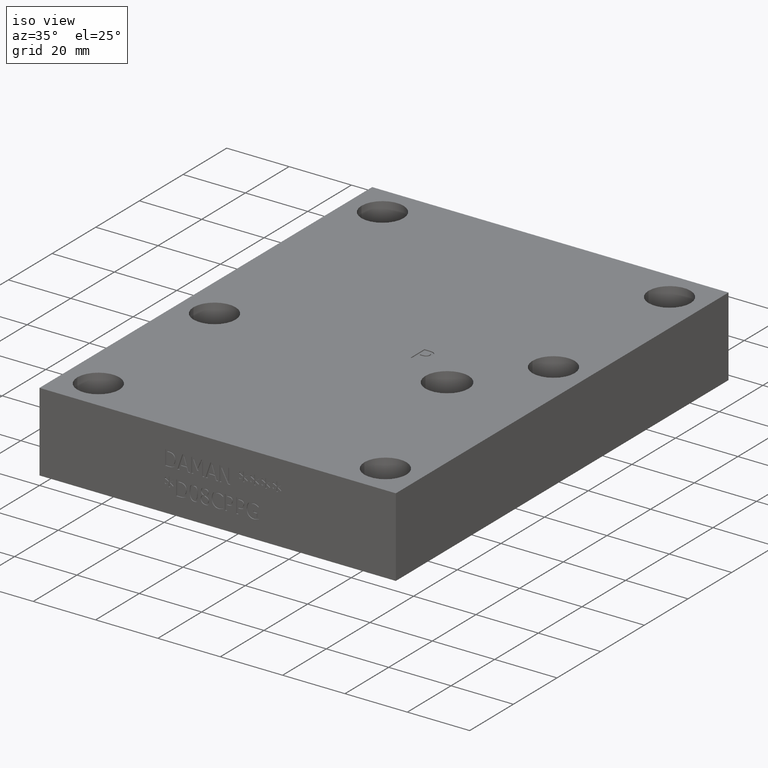
[diagram: clean part render]
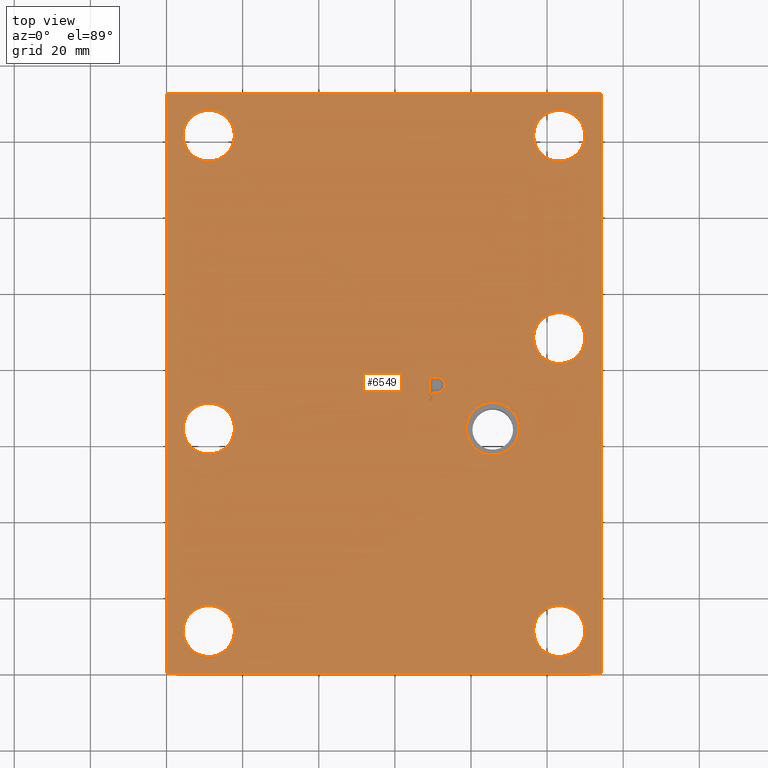
[diagram: tour spotlight — one face highlighted and labeled with its STEP entity id]
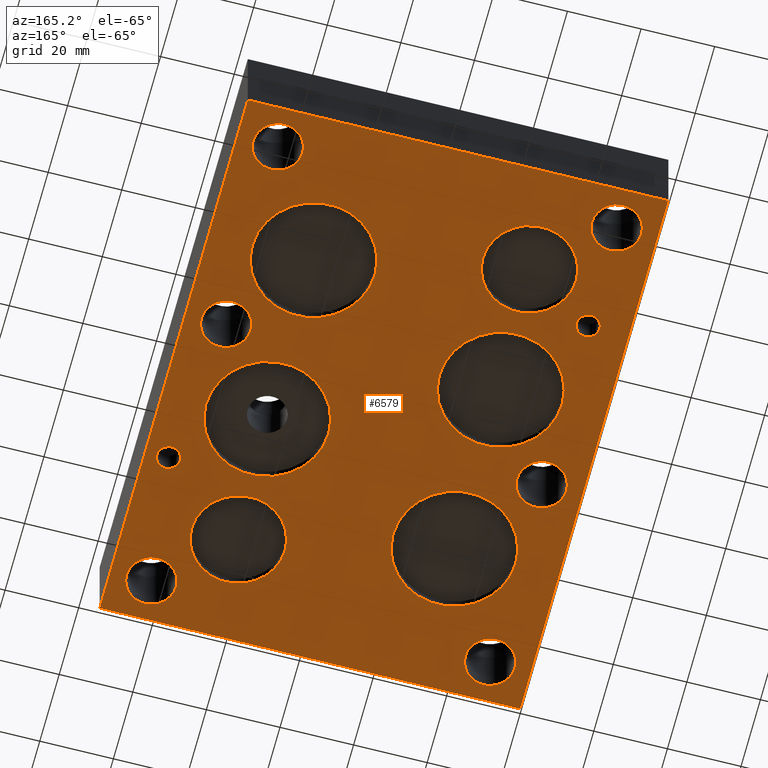
[diagram: tour spotlight — one face highlighted and labeled with its STEP entity id]
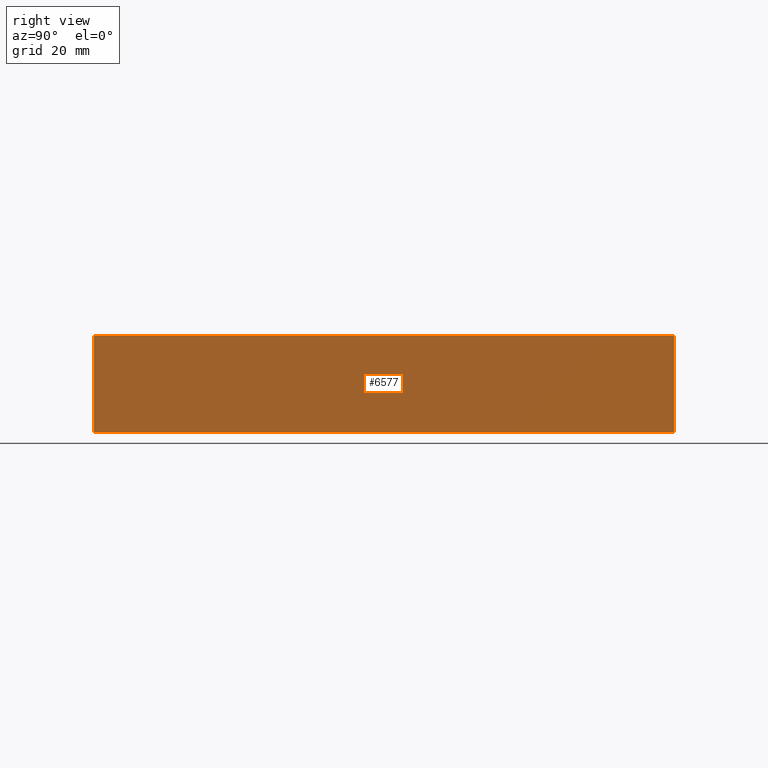
[diagram: tour spotlight — one face highlighted and labeled with its STEP entity id]
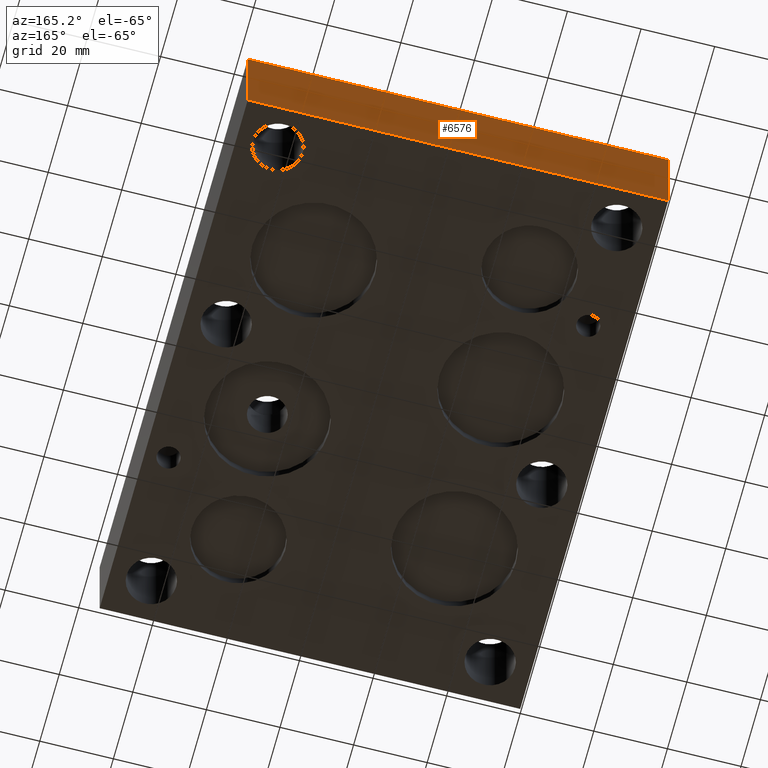
[diagram: tour spotlight — one face highlighted and labeled with its STEP entity id]
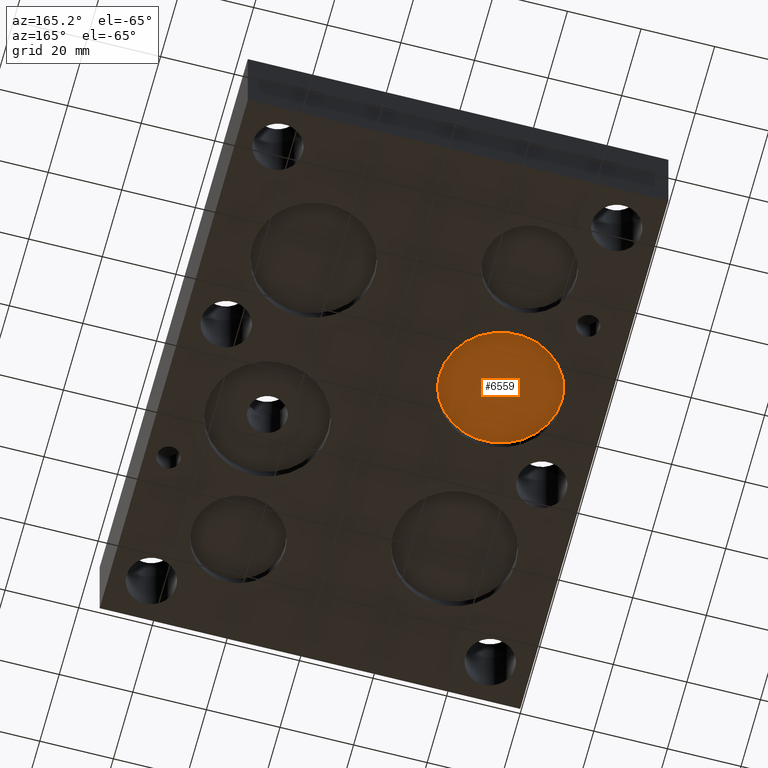
[diagram: tour spotlight — one face highlighted and labeled with its STEP entity id]
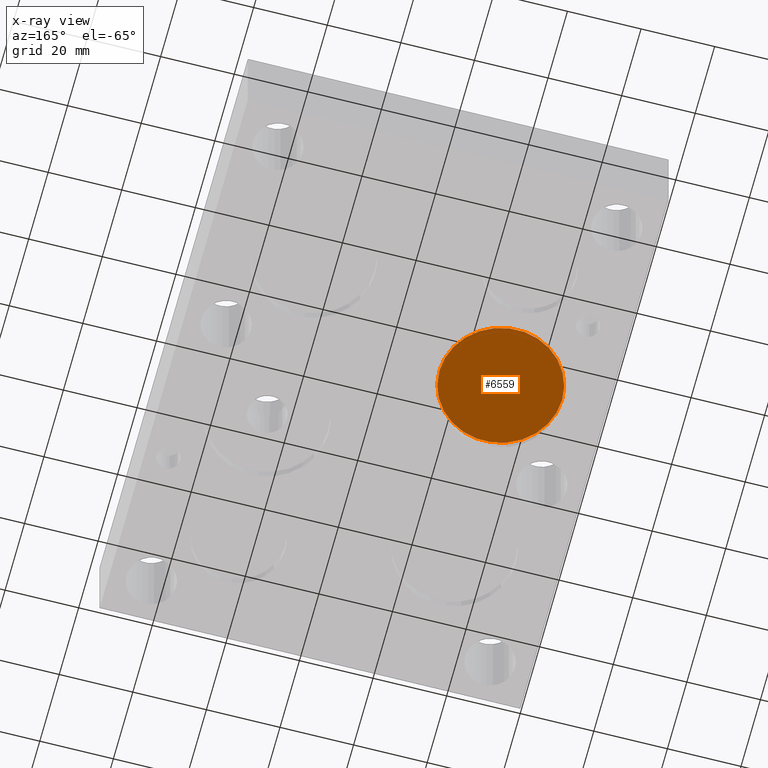
[diagram: x-ray of the same camera — body ghosted, this tour face saturated]
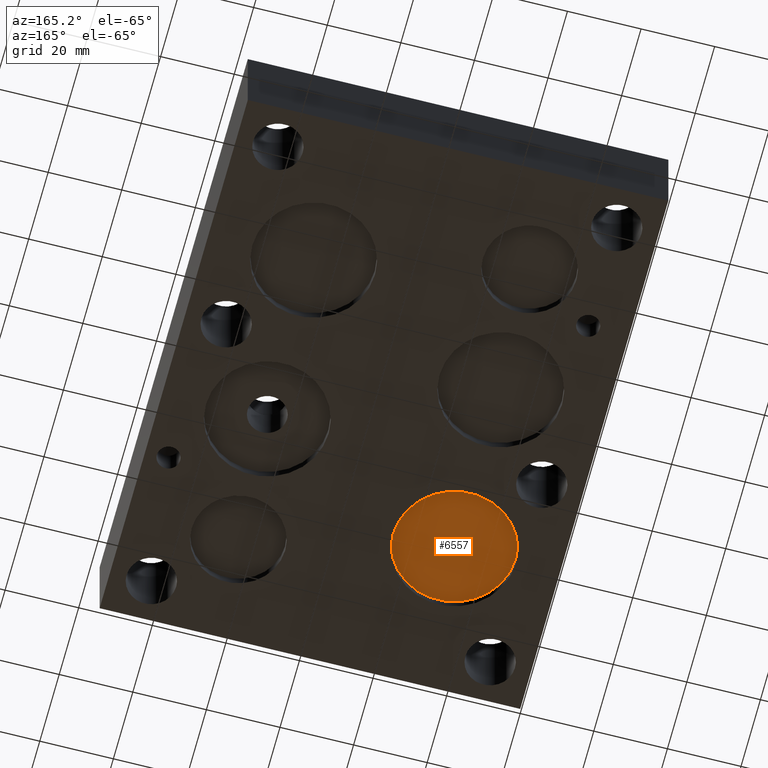
[diagram: tour spotlight — one face highlighted and labeled with its STEP entity id]
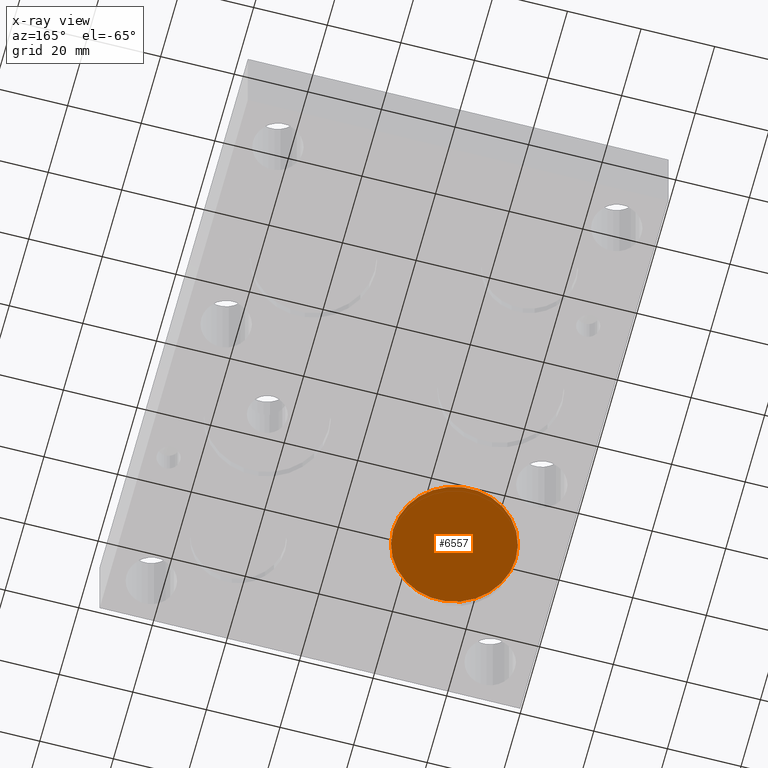
[diagram: x-ray of the same camera — body ghosted, this tour face saturated]
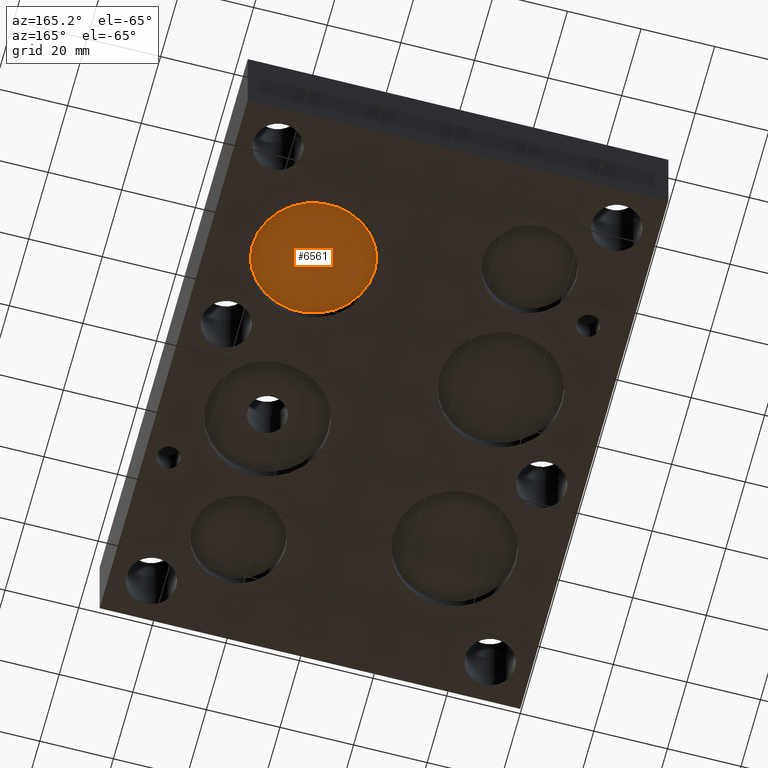
[diagram: tour spotlight — one face highlighted and labeled with its STEP entity id]
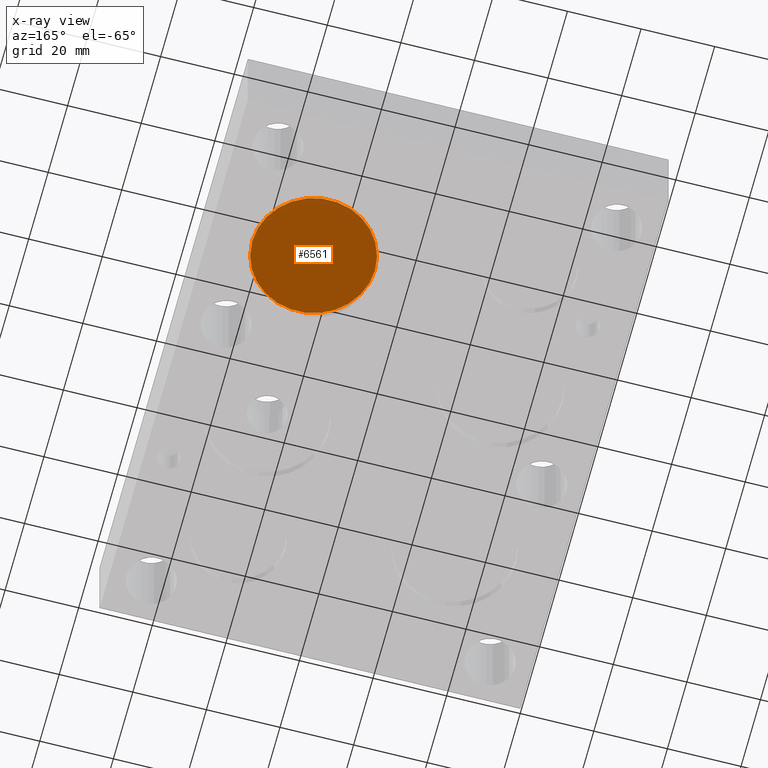
[diagram: x-ray of the same camera — body ghosted, this tour face saturated]
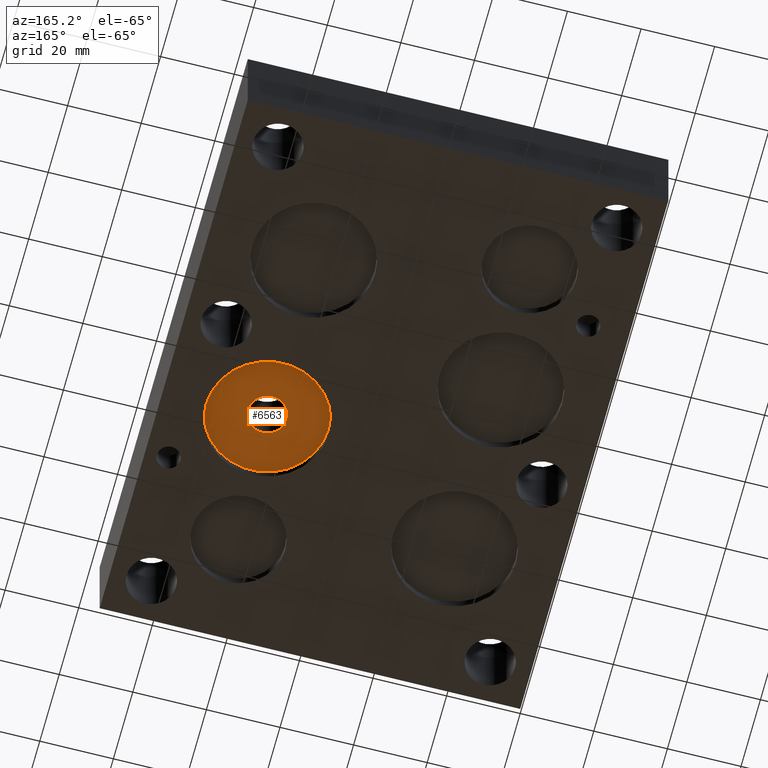
[diagram: tour spotlight — one face highlighted and labeled with its STEP entity id]
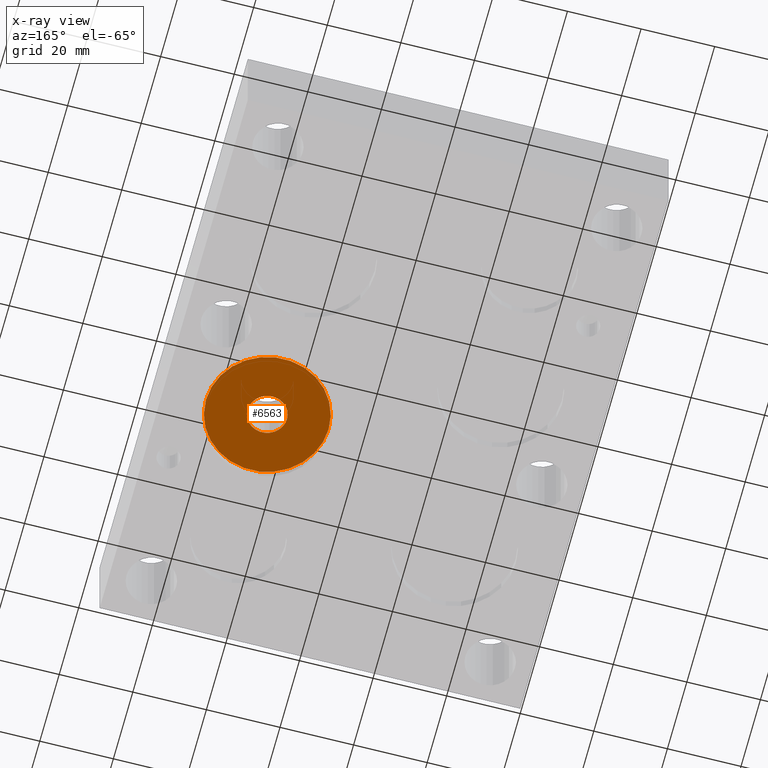
[diagram: x-ray of the same camera — body ghosted, this tour face saturated]
A machine part: a face-by-face anatomy tour. The part has 344 B-rep faces; the first image is the clean iso view, then the 8 largest visible faces are spotlighted one at a time (largest first), each with its STEP entity span.

Face 1 — top view, entity #6549. In plain terms, the highlighted planar face has unit normal (0, 0, 1).
Definition (entity closure, byte-faithful):
#33=CIRCLE('',#6813,0.2655);
#34=CIRCLE('',#6814,0.2655);
#35=CIRCLE('',#6815,0.2655);
#36=CIRCLE('',#6816,0.2655);
#37=CIRCLE('',#6817,0.2655);
#38=CIRCLE('',#6818,0.2655);
#39=CIRCLE('',#6819,0.273);
#40=CIRCLE('',#6820,0.273);
#117=FACE_BOUND('',#926,.T.);
#118=FACE_BOUND('',#927,.T.);
#119=FACE_BOUND('',#928,.T.);
#120=FACE_BOUND('',#929,.T.);
#121=FACE_BOUND('',#930,.T.);
#122=FACE_BOUND('',#931,.T.);
#123=FACE_BOUND('',#932,.T.);
#124=FACE_BOUND('',#933,.T.);
#554=FACE_OUTER_BOUND('',#925,.T.);
#925=EDGE_LOOP('',(#5819,#5820,#5821,#5822));
#926=EDGE_LOOP('',(#5823));
#927=EDGE_LOOP('',(#5824));
#928=EDGE_LOOP('',(#5825));
#929=EDGE_LOOP('',(#5826));
#930=EDGE_LOOP('',(#5827));
#931=EDGE_LOOP('',(#5828));
#932=EDGE_LOOP('',(#5829,#5830));
#933=EDGE_LOOP('',(#5831,#5832,#5833,#5834,#5835,#5836,#5837,#5838,#5839));
#1602=LINE('',#11308,#2285);
#1619=LINE('',#11465,#2302);
#1622=LINE('',#11470,#2305);
#1624=LINE('',#11474,#2307);
#1633=LINE('',#11516,#2316);
#1635=LINE('',#11520,#2318);
#1638=LINE('',#11550,#2321);
#1639=LINE('',#11552,#2322);
#1640=LINE('',#11553,#2323);
#2285=VECTOR('',#7912,4.5);
#2302=VECTOR('',#7949,0.393700787401575);
#2305=VECTOR('',#7954,0.393700787401575);
#2307=VECTOR('',#7958,0.393700787401575);
#2316=VECTOR('',#7975,0.393700787401575);
#2318=VECTOR('',#7979,0.393700787401575);
#2321=VECTOR('',#7984,6.);
#2322=VECTOR('',#7985,6.);
#2323=VECTOR('',#7986,4.5);
#2545=B_SPLINE_CURVE_WITH_KNOTS('',2,(#11485,#11486,#11487,#11488),
 .UNSPECIFIED.,.F.,.F.,(3,1,3),(0.,1.,2.),.UNSPECIFIED.);
#2546=B_SPLINE_CURVE_WITH_KNOTS('',2,(#11499,#11500,#11501,#11502),
 .UNSPECIFIED.,.F.,.F.,(3,1,3),(0.,1.,2.),.UNSPECIFIED.);
#2547=B_SPLINE_CURVE_WITH_KNOTS('',2,(#11531,#11532,#11533,#11534),
 .UNSPECIFIED.,.F.,.F.,(3,1,3),(0.,1.,2.),.UNSPECIFIED.);
#2548=B_SPLINE_CURVE_WITH_KNOTS('',2,(#11544,#11545,#11546,#11547),
 .UNSPECIFIED.,.F.,.F.,(3,1,3),(0.,1.,2.),.UNSPECIFIED.);
#3087=VERTEX_POINT('',#11306);
#3088=VERTEX_POINT('',#11307);
#3112=VERTEX_POINT('',#11463);
#3113=VERTEX_POINT('',#11464);
#3114=VERTEX_POINT('',#11469);
#3115=VERTEX_POINT('',#11473);
#3116=VERTEX_POINT('',#11484);
#3117=VERTEX_POINT('',#11498);
#3120=VERTEX_POINT('',#11515);
#3121=VERTEX_POINT('',#11519);
#3122=VERTEX_POINT('',#11530);
#3123=VERTEX_POINT('',#11549);
#3124=VERTEX_POINT('',#11551);
#3125=VERTEX_POINT('',#11554);
#3126=VERTEX_POINT('',#11556);
#3127=VERTEX_POINT('',#11558);
#3128=VERTEX_POINT('',#11560);
#3129=VERTEX_POINT('',#11562);
#3130=VERTEX_POINT('',#11564);
#3131=VERTEX_POINT('',#11566);
#3132=VERTEX_POINT('',#11567);
#3993=EDGE_CURVE('',#3087,#3088,#1602,.T.);
#4022=EDGE_CURVE('',#3112,#3113,#1619,.T.);
#4025=EDGE_CURVE('',#3113,#3114,#1622,.T.);
#4027=EDGE_CURVE('',#3114,#3115,#1624,.T.);
#4029=EDGE_CURVE('',#3115,#3116,#2545,.T.);
#4031=EDGE_CURVE('',#3116,#3117,#2546,.T.);
#4038=EDGE_CURVE('',#3120,#3112,#1633,.T.);
#4040=EDGE_CURVE('',#3121,#3120,#1635,.T.);
#4042=EDGE_CURVE('',#3122,#3121,#2547,.T.);
#4044=EDGE_CURVE('',#3117,#3122,#2548,.T.);
#4045=EDGE_CURVE('',#3088,#3123,#1638,.T.);
#4046=EDGE_CURVE('',#3124,#3087,#1639,.T.);
#4047=EDGE_CURVE('',#3123,#3124,#1640,.T.);
#4048=EDGE_CURVE('',#3125,#3125,#33,.T.);
#4049=EDGE_CURVE('',#3126,#3126,#34,.T.);
#4050=EDGE_CURVE('',#3127,#3127,#35,.T.);
#4051=EDGE_CURVE('',#3128,#3128,#36,.T.);
#4052=EDGE_CURVE('',#3129,#3129,#37,.T.);
#4053=EDGE_CURVE('',#3130,#3130,#38,.T.);
#4054=EDGE_CURVE('',#3131,#3132,#39,.T.);
#4055=EDGE_CURVE('',#3132,#3131,#40,.T.);
#5819=ORIENTED_EDGE('',*,*,#4045,.F.);
#5820=ORIENTED_EDGE('',*,*,#3993,.F.);
#5821=ORIENTED_EDGE('',*,*,#4046,.F.);
#5822=ORIENTED_EDGE('',*,*,#4047,.F.);
#5823=ORIENTED_EDGE('',*,*,#4048,.T.);
#5824=ORIENTED_EDGE('',*,*,#4049,.T.);
#5825=ORIENTED_EDGE('',*,*,#4050,.T.);
#5826=ORIENTED_EDGE('',*,*,#4051,.T.);
#5827=ORIENTED_EDGE('',*,*,#4052,.T.);
#5828=ORIENTED_EDGE('',*,*,#4053,.T.);
#5829=ORIENTED_EDGE('',*,*,#4054,.T.);
#5830=ORIENTED_EDGE('',*,*,#4055,.T.);
#5831=ORIENTED_EDGE('',*,*,#4022,.T.);
#5832=ORIENTED_EDGE('',*,*,#4025,.T.);
#5833=ORIENTED_EDGE('',*,*,#4027,.T.);
#5834=ORIENTED_EDGE('',*,*,#4029,.T.);
#5835=ORIENTED_EDGE('',*,*,#4031,.T.);
#5836=ORIENTED_EDGE('',*,*,#4044,.T.);
#5837=ORIENTED_EDGE('',*,*,#4042,.T.);
#5838=ORIENTED_EDGE('',*,*,#4040,.T.);
#5839=ORIENTED_EDGE('',*,*,#4038,.T.);
#6223=PLANE('',#6812);
#6549=ADVANCED_FACE('',(#554,#117,#118,#119,#120,#121,#122,#123,#124),#6223,
 .T.);
#6812=AXIS2_PLACEMENT_3D('',#11548,#7982,#7983);
#6813=AXIS2_PLACEMENT_3D('',#11555,#7987,#7988);
#6814=AXIS2_PLACEMENT_3D('',#11557,#7989,#7990);
#6815=AXIS2_PLACEMENT_3D('',#11559,#7991,#7992);
#6816=AXIS2_PLACEMENT_3D('',#11561,#7993,#7994);
#6817=AXIS2_PLACEMENT_3D('',#11563,#7995,#7996);
#6818=AXIS2_PLACEMENT_3D('',#11565,#7997,#7998);
#6819=AXIS2_PLACEMENT_3D('',#11568,#7999,#8000);
#6820=AXIS2_PLACEMENT_3D('',#11569,#8001,#8002);
#7912=DIRECTION('',(-1.,0.,0.));
#7949=DIRECTION('',(-1.,0.,0.));
#7954=DIRECTION('',(0.,1.,0.));
#7958=DIRECTION('',(1.,0.,0.));
#7975=DIRECTION('',(0.,-1.,0.));
#7979=DIRECTION('',(-1.,0.,0.));
#7982=DIRECTION('center_axis',(0.,0.,1.));
#7983=DIRECTION('ref_axis',(1.,0.,0.));
#7984=DIRECTION('',(0.,1.,0.));
#7985=DIRECTION('',(0.,-1.,0.));
#7986=DIRECTION('',(1.,0.,0.));
#7987=DIRECTION('center_axis',(0.,0.,-1.));
#7988=DIRECTION('ref_axis',(1.,0.,0.));
#7989=DIRECTION('center_axis',(0.,0.,-1.));
#7990=DIRECTION('ref_axis',(1.,0.,0.));
#7991=DIRECTION('center_axis',(0.,0.,-1.));
#7992=DIRECTION('ref_axis',(1.,0.,0.));
#7993=DIRECTION('center_axis',(0.,0.,-1.));
#7994=DIRECTION('ref_axis',(1.,0.,0.));
#7995=DIRECTION('center_axis',(0.,0.,-1.));
#7996=DIRECTION('ref_axis',(1.,0.,0.));
#7997=DIRECTION('center_axis',(0.,0.,-1.));
#7998=DIRECTION('ref_axis',(1.,0.,0.));
#7999=DIRECTION('center_axis',(0.,0.,-1.));
#8000=DIRECTION('ref_axis',(1.,0.,0.));
#8001=DIRECTION('center_axis',(0.,0.,-1.));
#8002=DIRECTION('ref_axis',(1.,0.,0.));
#11306=CARTESIAN_POINT('',(4.5,0.,1.));
#11307=CARTESIAN_POINT('',(0.,0.,1.));
#11308=CARTESIAN_POINT('',(4.5,0.,1.));
#11463=CARTESIAN_POINT('',(2.7534468538183,2.809072722305,1.));
#11464=CARTESIAN_POINT('',(2.72022157068682,2.809072722305,1.));
#11465=CARTESIAN_POINT('',(2.48511078534341,2.809072722305,1.));
#11469=CARTESIAN_POINT('',(2.72022157068682,3.05907271855038,1.));
#11470=CARTESIAN_POINT('',(2.72022157068682,3.02953635927519,1.));
#11473=CARTESIAN_POINT('',(2.7830254595329,3.05907271855038,1.));
#11474=CARTESIAN_POINT('',(2.51651272976645,3.05907271855038,1.));
#11484=CARTESIAN_POINT('',(2.84846305984673,3.04347304293377,1.));
#11485=CARTESIAN_POINT('Ctrl Pts',(2.7830254595329,3.05907271855038,1.));
#11486=CARTESIAN_POINT('Ctrl Pts',(2.80531071041377,3.05907271855038,1.));
#11487=CARTESIAN_POINT('Ctrl Pts',(2.83651006164699,3.05177936371664,1.));
#11488=CARTESIAN_POINT('Ctrl Pts',(2.84846305984673,3.04347304293377,1.));
#11498=CARTESIAN_POINT('',(2.87824425875116,2.98370805193508,1.));
#11499=CARTESIAN_POINT('Ctrl Pts',(2.84846305984673,3.04347304293377,1.));
#11500=CARTESIAN_POINT('Ctrl Pts',(2.86244198994473,3.03395116301195,1.));
#11501=CARTESIAN_POINT('Ctrl Pts',(2.87824425875116,3.00457515048717,1.));
#11502=CARTESIAN_POINT('Ctrl Pts',(2.87824425875116,2.98370805193508,1.));
#11515=CARTESIAN_POINT('',(2.7534468538183,2.902265589625,1.));
#11516=CARTESIAN_POINT('',(2.7534468538183,2.9045363611525,1.));
#11519=CARTESIAN_POINT('',(2.78160730720412,2.902265589625,1.));
#11520=CARTESIAN_POINT('',(2.50172342690915,2.902265589625,1.));
#11530=CARTESIAN_POINT('',(2.85636419424994,2.92819751792274,1.));
#11531=CARTESIAN_POINT('Ctrl Pts',(2.85636419424994,2.92819751792274,1.));
#11532=CARTESIAN_POINT('Ctrl Pts',(2.84339823010108,2.91543414696369,1.));
#11533=CARTESIAN_POINT('Ctrl Pts',(2.80834960826116,2.902265589625,1.));
#11534=CARTESIAN_POINT('Ctrl Pts',(2.78160730720412,2.902265589625,1.));
#11544=CARTESIAN_POINT('Ctrl Pts',(2.87824425875116,2.98370805193508,1.));
#11545=CARTESIAN_POINT('Ctrl Pts',(2.87824425875116,2.967500596749,1.));
#11546=CARTESIAN_POINT('Ctrl Pts',(2.86669644693107,2.93832717741404,1.));
#11547=CARTESIAN_POINT('Ctrl Pts',(2.85636419424994,2.92819751792274,1.));
#11548=CARTESIAN_POINT('Origin',(2.25,3.,1.));
#11549=CARTESIAN_POINT('',(0.,6.,1.));
#11550=CARTESIAN_POINT('',(0.,0.,1.));
#11551=CARTESIAN_POINT('',(4.5,6.,1.));
#11552=CARTESIAN_POINT('',(4.5,6.,1.));
#11553=CARTESIAN_POINT('',(0.,6.,1.));
#11554=CARTESIAN_POINT('',(0.1715,5.562,1.));
#11555=CARTESIAN_POINT('Origin',(0.437,5.562,1.));
#11556=CARTESIAN_POINT('',(3.797,5.5618,1.));
#11557=CARTESIAN_POINT('Origin',(4.0625,5.5618,1.));
#11558=CARTESIAN_POINT('',(3.7975,3.468,1.));
#11559=CARTESIAN_POINT('Origin',(4.063,3.468,1.));
#11560=CARTESIAN_POINT('',(3.797,0.437,1.));
#11561=CARTESIAN_POINT('Origin',(4.0625,0.437,1.));
#11562=CARTESIAN_POINT('',(0.172,0.437,1.));
#11563=CARTESIAN_POINT('Origin',(0.4375,0.437,1.));
#11564=CARTESIAN_POINT('',(0.1725,2.531,1.));
#11565=CARTESIAN_POINT('Origin',(0.438,2.531,1.));
#11566=CARTESIAN_POINT('',(3.648,2.531,1.));
#11567=CARTESIAN_POINT('',(3.102,2.531,1.));
#11568=CARTESIAN_POINT('Origin',(3.375,2.531,1.));
#11569=CARTESIAN_POINT('Origin',(3.375,2.531,1.));

Face 2 — auxiliary view, entity #6579. In plain terms, the highlighted planar face has unit normal (0, 0, 1).
Definition (entity closure, byte-faithful):
#48=CIRCLE('',#6833,0.5);
#49=CIRCLE('',#6834,0.5);
#52=CIRCLE('',#6839,0.5);
#53=CIRCLE('',#6840,0.5);
#56=CIRCLE('',#6845,0.6565);
#57=CIRCLE('',#6846,0.6565);
#60=CIRCLE('',#6851,0.6565);
#61=CIRCLE('',#6852,0.6565);
#64=CIRCLE('',#6857,0.6565);
#65=CIRCLE('',#6858,0.6565);
#68=CIRCLE('',#6863,0.6565);
#69=CIRCLE('',#6864,0.6565);
#72=CIRCLE('',#6869,0.125);
#73=CIRCLE('',#6870,0.125);
#76=CIRCLE('',#6875,0.125);
#77=CIRCLE('',#6876,0.125);
#78=CIRCLE('',#6878,0.2655);
#79=CIRCLE('',#6879,0.2655);
#80=CIRCLE('',#6881,0.2655);
#81=CIRCLE('',#6882,0.2655);
#82=CIRCLE('',#6884,0.2655);
#83=CIRCLE('',#6885,0.2655);
#84=CIRCLE('',#6887,0.2655);
#85=CIRCLE('',#6888,0.2655);
#86=CIRCLE('',#6890,0.2655);
#87=CIRCLE('',#6891,0.2655);
#88=CIRCLE('',#6893,0.2655);
#89=CIRCLE('',#6894,0.2655);
#127=FACE_BOUND('',#966,.T.);
#128=FACE_BOUND('',#967,.T.);
#129=FACE_BOUND('',#968,.T.);
#130=FACE_BOUND('',#969,.T.);
#131=FACE_BOUND('',#970,.T.);
#132=FACE_BOUND('',#971,.T.);
#133=FACE_BOUND('',#972,.T.);
#134=FACE_BOUND('',#973,.T.);
#135=FACE_BOUND('',#974,.T.);
#136=FACE_BOUND('',#975,.T.);
#137=FACE_BOUND('',#976,.T.);
#138=FACE_BOUND('',#977,.T.);
#139=FACE_BOUND('',#978,.T.);
#140=FACE_BOUND('',#979,.T.);
#584=FACE_OUTER_BOUND('',#965,.T.);
#965=EDGE_LOOP('',(#5973,#5974,#5975,#5976));
#966=EDGE_LOOP('',(#5977,#5978));
#967=EDGE_LOOP('',(#5979,#5980));
#968=EDGE_LOOP('',(#5981,#5982));
#969=EDGE_LOOP('',(#5983,#5984));
#970=EDGE_LOOP('',(#5985,#5986));
#971=EDGE_LOOP('',(#5987,#5988));
#972=EDGE_LOOP('',(#5989,#5990));
#973=EDGE_LOOP('',(#5991,#5992));
#974=EDGE_LOOP('',(#5993,#5994));
#975=EDGE_LOOP('',(#5995,#5996));
#976=EDGE_LOOP('',(#5997,#5998));
#977=EDGE_LOOP('',(#5999,#6000));
#978=EDGE_LOOP('',(#6001,#6002));
#979=EDGE_LOOP('',(#6003,#6004));
#1604=LINE('',#11312,#2287);
#1660=LINE('',#11716,#2343);
#1662=LINE('',#11720,#2345);
#1663=LINE('',#11722,#2346);
#2287=VECTOR('',#7914,4.5);
#2343=VECTOR('',#8172,6.);
#2345=VECTOR('',#8176,4.5);
#2346=VECTOR('',#8179,6.);
#3089=VERTEX_POINT('',#11309);
#3090=VERTEX_POINT('',#11311);
#3140=VERTEX_POINT('',#11591);
#3141=VERTEX_POINT('',#11593);
#3144=VERTEX_POINT('',#11602);
#3145=VERTEX_POINT('',#11604);
#3148=VERTEX_POINT('',#11613);
#3149=VERTEX_POINT('',#11615);
#3152=VERTEX_POINT('',#11624);
#3153=VERTEX_POINT('',#11626);
#3156=VERTEX_POINT('',#11635);
#3157=VERTEX_POINT('',#11637);
#3160=VERTEX_POINT('',#11646);
#3161=VERTEX_POINT('',#11648);
#3165=VERTEX_POINT('',#11659);
#3166=VERTEX_POINT('',#11661);
#3170=VERTEX_POINT('',#11672);
#3171=VERTEX_POINT('',#11674);
#3172=VERTEX_POINT('',#11678);
#3173=VERTEX_POINT('',#11680);
#3174=VERTEX_POINT('',#11684);
#3175=VERTEX_POINT('',#11686);
#3176=VERTEX_POINT('',#11690);
#3177=VERTEX_POINT('',#11692);
#3178=VERTEX_POINT('',#11696);
#3179=VERTEX_POINT('',#11698);
#3180=VERTEX_POINT('',#11702);
#3181=VERTEX_POINT('',#11704);
#3182=VERTEX_POINT('',#11708);
#3183=VERTEX_POINT('',#11710);
#3184=VERTEX_POINT('',#11714);
#3185=VERTEX_POINT('',#11718);
#3995=EDGE_CURVE('',#3089,#3090,#1604,.T.);
#4066=EDGE_CURVE('',#3141,#3140,#48,.T.);
#4067=EDGE_CURVE('',#3140,#3141,#49,.T.);
#4071=EDGE_CURVE('',#3145,#3144,#52,.T.);
#4072=EDGE_CURVE('',#3144,#3145,#53,.T.);
#4076=EDGE_CURVE('',#3149,#3148,#56,.T.);
#4077=EDGE_CURVE('',#3148,#3149,#57,.T.);
#4081=EDGE_CURVE('',#3153,#3152,#60,.T.);
#4082=EDGE_CURVE('',#3152,#3153,#61,.T.);
#4086=EDGE_CURVE('',#3157,#3156,#64,.T.);
#4087=EDGE_CURVE('',#3156,#3157,#65,.T.);
#4091=EDGE_CURVE('',#3161,#3160,#68,.T.);
#4092=EDGE_CURVE('',#3160,#3161,#69,.T.);
#4097=EDGE_CURVE('',#3166,#3165,#72,.T.);
#4098=EDGE_CURVE('',#3165,#3166,#73,.T.);
#4103=EDGE_CURVE('',#3171,#3170,#76,.T.);
#4104=EDGE_CURVE('',#3170,#3171,#77,.T.);
#4106=EDGE_CURVE('',#3173,#3172,#78,.T.);
#4107=EDGE_CURVE('',#3172,#3173,#79,.T.);
#4109=EDGE_CURVE('',#3175,#3174,#80,.T.);
#4110=EDGE_CURVE('',#3174,#3175,#81,.T.);
#4112=EDGE_CURVE('',#3177,#3176,#82,.T.);
#4113=EDGE_CURVE('',#3176,#3177,#83,.T.);
#4115=EDGE_CURVE('',#3179,#3178,#84,.T.);
#4116=EDGE_CURVE('',#3178,#3179,#85,.T.);
#4118=EDGE_CURVE('',#3181,#3180,#86,.T.);
#4119=EDGE_CURVE('',#3180,#3181,#87,.T.);
#4121=EDGE_CURVE('',#3183,#3182,#88,.T.);
#4122=EDGE_CURVE('',#3182,#3183,#89,.T.);
#4124=EDGE_CURVE('',#3184,#3089,#1660,.T.);
#4126=EDGE_CURVE('',#3185,#3184,#1662,.T.);
#4127=EDGE_CURVE('',#3090,#3185,#1663,.T.);
#5973=ORIENTED_EDGE('',*,*,#3995,.F.);
#5974=ORIENTED_EDGE('',*,*,#4124,.F.);
#5975=ORIENTED_EDGE('',*,*,#4126,.F.);
#5976=ORIENTED_EDGE('',*,*,#4127,.F.);
#5977=ORIENTED_EDGE('',*,*,#4066,.T.);
#5978=ORIENTED_EDGE('',*,*,#4067,.T.);
#5979=ORIENTED_EDGE('',*,*,#4071,.T.);
#5980=ORIENTED_EDGE('',*,*,#4072,.T.);
#5981=ORIENTED_EDGE('',*,*,#4076,.T.);
#5982=ORIENTED_EDGE('',*,*,#4077,.T.);
#5983=ORIENTED_EDGE('',*,*,#4081,.T.);
#5984=ORIENTED_EDGE('',*,*,#4082,.T.);
#5985=ORIENTED_EDGE('',*,*,#4086,.T.);
#5986=ORIENTED_EDGE('',*,*,#4087,.T.);
#5987=ORIENTED_EDGE('',*,*,#4091,.T.);
#5988=ORIENTED_EDGE('',*,*,#4092,.T.);
#5989=ORIENTED_EDGE('',*,*,#4097,.T.);
#5990=ORIENTED_EDGE('',*,*,#4098,.T.);
#5991=ORIENTED_EDGE('',*,*,#4103,.T.);
#5992=ORIENTED_EDGE('',*,*,#4104,.T.);
#5993=ORIENTED_EDGE('',*,*,#4106,.T.);
#5994=ORIENTED_EDGE('',*,*,#4107,.T.);
#5995=ORIENTED_EDGE('',*,*,#4109,.T.);
#5996=ORIENTED_EDGE('',*,*,#4110,.T.);
#5997=ORIENTED_EDGE('',*,*,#4112,.T.);
#5998=ORIENTED_EDGE('',*,*,#4113,.T.);
#5999=ORIENTED_EDGE('',*,*,#4115,.T.);
#6000=ORIENTED_EDGE('',*,*,#4116,.T.);
#6001=ORIENTED_EDGE('',*,*,#4118,.T.);
#6002=ORIENTED_EDGE('',*,*,#4119,.T.);
#6003=ORIENTED_EDGE('',*,*,#4121,.T.);
#6004=ORIENTED_EDGE('',*,*,#4122,.T.);
#6235=PLANE('',#6899);
#6579=ADVANCED_FACE('',(#584,#127,#128,#129,#130,#131,#132,#133,#134,#135,
#136,#137,#138,#139,#140),#6235,.F.);
#6833=AXIS2_PLACEMENT_3D('',#11594,#8030,#8031);
#6834=AXIS2_PLACEMENT_3D('',#11595,#8032,#8033);
#6839=AXIS2_PLACEMENT_3D('',#11605,#8043,#8044);
#6840=AXIS2_PLACEMENT_3D('',#11606,#8045,#8046);
#6845=AXIS2_PLACEMENT_3D('',#11616,#8056,#8057);
#6846=AXIS2_PLACEMENT_3D('',#11617,#8058,#8059);
#6851=AXIS2_PLACEMENT_3D('',#11627,#8069,#8070);
#6852=AXIS2_PLACEMENT_3D('',#11628,#8071,#8072);
#6857=AXIS2_PLACEMENT_3D('',#11638,#8082,#8083);
#6858=AXIS2_PLACEMENT_3D('',#11639,#8084,#8085);
#6863=AXIS2_PLACEMENT_3D('',#11649,#8095,#8096);
#6864=AXIS2_PLACEMENT_3D('',#11650,#8097,#8098);
#6869=AXIS2_PLACEMENT_3D('',#11662,#8109,#8110);
#6870=AXIS2_PLACEMENT_3D('',#11663,#8111,#8112);
#6875=AXIS2_PLACEMENT_3D('',#11675,#8123,#8124);
#6876=AXIS2_PLACEMENT_3D('',#11676,#8125,#8126);
#6878=AXIS2_PLACEMENT_3D('',#11681,#8130,#8131);
#6879=AXIS2_PLACEMENT_3D('',#11682,#8132,#8133);
#6881=AXIS2_PLACEMENT_3D('',#11687,#8137,#8138);
#6882=AXIS2_PLACEMENT_3D('',#11688,#8139,#8140);
#6884=AXIS2_PLACEMENT_3D('',#11693,#8144,#8145);
#6885=AXIS2_PLACEMENT_3D('',#11694,#8146,#8147);
#6887=AXIS2_PLACEMENT_3D('',#11699,#8151,#8152);
#6888=AXIS2_PLACEMENT_3D('',#11700,#8153,#8154);
#6890=AXIS2_PLACEMENT_3D('',#11705,#8158,#8159);
#6891=AXIS2_PLACEMENT_3D('',#11706,#8160,#8161);
#6893=AXIS2_PLACEMENT_3D('',#11711,#8165,#8166);
#6894=AXIS2_PLACEMENT_3D('',#11712,#8167,#8168);
#6899=AXIS2_PLACEMENT_3D('',#11724,#8182,#8183);
#7914=DIRECTION('',(1.,0.,0.));
#8030=DIRECTION('center_axis',(0.,0.,1.));
#8031=DIRECTION('ref_axis',(1.,0.,0.));
#8032=DIRECTION('center_axis',(0.,0.,1.));
#8033=DIRECTION('ref_axis',(1.,0.,0.));
#8043=DIRECTION('center_axis',(0.,0.,1.));
#8044=DIRECTION('ref_axis',(1.,0.,0.));
#8045=DIRECTION('center_axis',(0.,0.,1.));
#8046=DIRECTION('ref_axis',(1.,0.,0.));
#8056=DIRECTION('center_axis',(0.,0.,1.));
#8057=DIRECTION('ref_axis',(1.,0.,0.));
#8058=DIRECTION('center_axis',(0.,0.,1.));
#8059=DIRECTION('ref_axis',(1.,0.,0.));
#8069=DIRECTION('center_axis',(0.,0.,1.));
#8070=DIRECTION('ref_axis',(1.,0.,0.));
#8071=DIRECTION('center_axis',(0.,0.,1.));
#8072=DIRECTION('ref_axis',(1.,0.,0.));
#8082=DIRECTION('center_axis',(0.,0.,1.));
#8083=DIRECTION('ref_axis',(1.,0.,0.));
#8084=DIRECTION('center_axis',(0.,0.,1.));
#8085=DIRECTION('ref_axis',(1.,0.,0.));
#8095=DIRECTION('center_axis',(0.,0.,1.));
#8096=DIRECTION('ref_axis',(1.,0.,0.));
#8097=DIRECTION('center_axis',(0.,0.,1.));
#8098=DIRECTION('ref_axis',(1.,0.,0.));
#8109=DIRECTION('center_axis',(0.,0.,1.));
#8110=DIRECTION('ref_axis',(1.,0.,0.));
#8111=DIRECTION('center_axis',(0.,0.,1.));
#8112=DIRECTION('ref_axis',(1.,0.,0.));
#8123=DIRECTION('center_axis',(0.,0.,1.));
#8124=DIRECTION('ref_axis',(1.,0.,0.));
#8125=DIRECTION('center_axis',(0.,0.,1.));
#8126=DIRECTION('ref_axis',(1.,0.,0.));
#8130=DIRECTION('center_axis',(0.,0.,1.));
#8131=DIRECTION('ref_axis',(1.,0.,0.));
#8132=DIRECTION('center_axis',(0.,0.,1.));
#8133=DIRECTION('ref_axis',(1.,0.,0.));
#8137=DIRECTION('center_axis',(0.,0.,1.));
#8138=DIRECTION('ref_axis',(1.,0.,0.));
#8139=DIRECTION('center_axis',(0.,0.,1.));
#8140=DIRECTION('ref_axis',(1.,0.,0.));
#8144=DIRECTION('center_axis',(0.,0.,1.));
#8145=DIRECTION('ref_axis',(1.,0.,0.));
#8146=DIRECTION('center_axis',(0.,0.,1.));
#8147=DIRECTION('ref_axis',(1.,0.,0.));
#8151=DIRECTION('center_axis',(0.,0.,1.));
#8152=DIRECTION('ref_axis',(1.,0.,0.));
#8153=DIRECTION('center_axis',(0.,0.,1.));
#8154=DIRECTION('ref_axis',(1.,0.,0.));
#8158=DIRECTION('center_axis',(0.,0.,1.));
#8159=DIRECTION('ref_axis',(1.,0.,0.));
#8160=DIRECTION('center_axis',(0.,0.,1.));
#8161=DIRECTION('ref_axis',(1.,0.,0.));
#8165=DIRECTION('center_axis',(0.,0.,1.));
#8166=DIRECTION('ref_axis',(1.,0.,0.));
#8167=DIRECTION('center_axis',(0.,0.,1.));
#8168=DIRECTION('ref_axis',(1.,0.,0.));
#8172=DIRECTION('',(0.,-1.,0.));
#8176=DIRECTION('',(-1.,0.,0.));
#8179=DIRECTION('',(0.,1.,0.));
#8182=DIRECTION('center_axis',(0.,0.,1.));
#8183=DIRECTION('ref_axis',(1.,0.,0.));
#11309=CARTESIAN_POINT('',(0.,0.,0.));
#11311=CARTESIAN_POINT('',(4.5,0.,0.));
#11312=CARTESIAN_POINT('',(0.,0.,0.));
#11591=CARTESIAN_POINT('',(2.813,1.125,0.));
#11593=CARTESIAN_POINT('',(3.813,1.125,0.));
#11594=CARTESIAN_POINT('Origin',(3.313,1.125,0.));
#11595=CARTESIAN_POINT('Origin',(3.313,1.125,0.));
#11602=CARTESIAN_POINT('',(0.688,4.875,0.));
#11604=CARTESIAN_POINT('',(1.688,4.875,0.));
#11605=CARTESIAN_POINT('Origin',(1.188,4.875,0.));
#11606=CARTESIAN_POINT('Origin',(1.188,4.875,0.));
#11613=CARTESIAN_POINT('',(0.4685,1.593,0.));
#11615=CARTESIAN_POINT('',(1.7815,1.593,0.));
#11616=CARTESIAN_POINT('Origin',(1.125,1.593,0.));
#11617=CARTESIAN_POINT('Origin',(1.125,1.593,0.));
#11624=CARTESIAN_POINT('',(0.4685,3.469,0.));
#11626=CARTESIAN_POINT('',(1.7815,3.469,0.));
#11627=CARTESIAN_POINT('Origin',(1.125,3.469,0.));
#11628=CARTESIAN_POINT('Origin',(1.125,3.469,0.));
#11635=CARTESIAN_POINT('',(2.7185,4.406,0.));
#11637=CARTESIAN_POINT('',(4.0315,4.406,0.));
#11638=CARTESIAN_POINT('Origin',(3.375,4.406,0.));
#11639=CARTESIAN_POINT('Origin',(3.375,4.406,0.));
#11646=CARTESIAN_POINT('',(2.7185,2.531,0.));
#11648=CARTESIAN_POINT('',(4.0315,2.531,0.));
#11649=CARTESIAN_POINT('Origin',(3.375,2.531,0.));
#11650=CARTESIAN_POINT('Origin',(3.375,2.531,0.));
#11659=CARTESIAN_POINT('',(4.125,1.844,0.));
#11661=CARTESIAN_POINT('',(4.375,1.844,0.));
#11662=CARTESIAN_POINT('Origin',(4.25,1.844,0.));
#11663=CARTESIAN_POINT('Origin',(4.25,1.844,0.));
#11672=CARTESIAN_POINT('',(0.312,4.406,0.));
#11674=CARTESIAN_POINT('',(0.562,4.406,0.));
#11675=CARTESIAN_POINT('Origin',(0.437,4.406,0.));
#11676=CARTESIAN_POINT('Origin',(0.437,4.406,0.));
#11678=CARTESIAN_POINT('',(0.1725,2.531,0.));
#11680=CARTESIAN_POINT('',(0.7035,2.531,0.));
#11681=CARTESIAN_POINT('Origin',(0.438,2.531,0.));
#11682=CARTESIAN_POINT('Origin',(0.438,2.531,0.));
#11684=CARTESIAN_POINT('',(0.172,0.437,0.));
#11686=CARTESIAN_POINT('',(0.703,0.437,0.));
#11687=CARTESIAN_POINT('Origin',(0.4375,0.437,0.));
#11688=CARTESIAN_POINT('Origin',(0.4375,0.437,0.));
#11690=CARTESIAN_POINT('',(3.797,0.437,0.));
#11692=CARTESIAN_POINT('',(4.328,0.437,0.));
#11693=CARTESIAN_POINT('Origin',(4.0625,0.437,0.));
#11694=CARTESIAN_POINT('Origin',(4.0625,0.437,0.));
#11696=CARTESIAN_POINT('',(3.7975,3.468,0.));
#11698=CARTESIAN_POINT('',(4.3285,3.468,0.));
#11699=CARTESIAN_POINT('Origin',(4.063,3.468,0.));
#11700=CARTESIAN_POINT('Origin',(4.063,3.468,0.));
#11702=CARTESIAN_POINT('',(3.797,5.5618,0.));
#11704=CARTESIAN_POINT('',(4.328,5.5618,0.));
#11705=CARTESIAN_POINT('Origin',(4.0625,5.5618,0.));
#11706=CARTESIAN_POINT('Origin',(4.0625,5.5618,0.));
#11708=CARTESIAN_POINT('',(0.1715,5.562,0.));
#11710=CARTESIAN_POINT('',(0.7025,5.562,0.));
#11711=CARTESIAN_POINT('Origin',(0.437,5.562,0.));
#11712=CARTESIAN_POINT('Origin',(0.437,5.562,0.));
#11714=CARTESIAN_POINT('',(0.,6.,0.));
#11716=CARTESIAN_POINT('',(0.,6.,0.));
#11718=CARTESIAN_POINT('',(4.5,6.,0.));
#11720=CARTESIAN_POINT('',(4.5,6.,0.));
#11722=CARTESIAN_POINT('',(4.5,0.,0.));
#11724=CARTESIAN_POINT('Origin',(2.25,3.,0.));

Face 3 — right view, entity #6577. In plain terms, the highlighted planar face has unit normal (1, 0, 0).
Definition (entity closure, byte-faithful):
#582=FACE_OUTER_BOUND('',#963,.T.);
#963=EDGE_LOOP('',(#5962,#5963,#5964,#5965));
#1605=LINE('',#11313,#2288);
#1639=LINE('',#11552,#2322);
#1661=LINE('',#11719,#2344);
#1663=LINE('',#11722,#2346);
#2288=VECTOR('',#7915,1.);
#2322=VECTOR('',#7985,6.);
#2344=VECTOR('',#8175,1.);
#2346=VECTOR('',#8179,6.);
#3087=VERTEX_POINT('',#11306);
#3090=VERTEX_POINT('',#11311);
#3124=VERTEX_POINT('',#11551);
#3185=VERTEX_POINT('',#11718);
#3996=EDGE_CURVE('',#3090,#3087,#1605,.T.);
#4046=EDGE_CURVE('',#3124,#3087,#1639,.T.);
#4125=EDGE_CURVE('',#3185,#3124,#1661,.T.);
#4127=EDGE_CURVE('',#3090,#3185,#1663,.T.);
#5962=ORIENTED_EDGE('',*,*,#4046,.T.);
#5963=ORIENTED_EDGE('',*,*,#3996,.F.);
#5964=ORIENTED_EDGE('',*,*,#4127,.T.);
#5965=ORIENTED_EDGE('',*,*,#4125,.T.);
#6233=PLANE('',#6897);
#6577=ADVANCED_FACE('',(#582),#6233,.T.);
#6897=AXIS2_PLACEMENT_3D('',#11721,#8177,#8178);
#7915=DIRECTION('',(0.,0.,1.));
#7985=DIRECTION('',(0.,-1.,0.));
#8175=DIRECTION('',(0.,0.,1.));
#8177=DIRECTION('center_axis',(1.,0.,0.));
#8178=DIRECTION('ref_axis',(0.,0.,-1.));
#8179=DIRECTION('',(0.,1.,0.));
#11306=CARTESIAN_POINT('',(4.5,0.,1.));
#11311=CARTESIAN_POINT('',(4.5,0.,0.));
#11313=CARTESIAN_POINT('',(4.5,0.,0.));
#11551=CARTESIAN_POINT('',(4.5,6.,1.));
#11552=CARTESIAN_POINT('',(4.5,6.,1.));
#11718=CARTESIAN_POINT('',(4.5,6.,0.));
#11719=CARTESIAN_POINT('',(4.5,6.,0.));
#11721=CARTESIAN_POINT('Origin',(4.5,6.,0.));
#11722=CARTESIAN_POINT('',(4.5,0.,0.));

Face 4 — auxiliary view, entity #6576. In plain terms, the highlighted planar face has unit normal (0, 1, 0).
Definition (entity closure, byte-faithful):
#581=FACE_OUTER_BOUND('',#962,.T.);
#962=EDGE_LOOP('',(#5958,#5959,#5960,#5961));
#1640=LINE('',#11553,#2323);
#1659=LINE('',#11715,#2342);
#1661=LINE('',#11719,#2344);
#1662=LINE('',#11720,#2345);
#2323=VECTOR('',#7986,4.5);
#2342=VECTOR('',#8171,1.);
#2344=VECTOR('',#8175,1.);
#2345=VECTOR('',#8176,4.5);
#3123=VERTEX_POINT('',#11549);
#3124=VERTEX_POINT('',#11551);
#3184=VERTEX_POINT('',#11714);
#3185=VERTEX_POINT('',#11718);
#4047=EDGE_CURVE('',#3123,#3124,#1640,.T.);
#4123=EDGE_CURVE('',#3184,#3123,#1659,.T.);
#4125=EDGE_CURVE('',#3185,#3124,#1661,.T.);
#4126=EDGE_CURVE('',#3185,#3184,#1662,.T.);
#5958=ORIENTED_EDGE('',*,*,#4047,.T.);
#5959=ORIENTED_EDGE('',*,*,#4125,.F.);
#5960=ORIENTED_EDGE('',*,*,#4126,.T.);
#5961=ORIENTED_EDGE('',*,*,#4123,.T.);
#6232=PLANE('',#6896);
#6576=ADVANCED_FACE('',(#581),#6232,.T.);
#6896=AXIS2_PLACEMENT_3D('',#11717,#8173,#8174);
#7986=DIRECTION('',(1.,0.,0.));
#8171=DIRECTION('',(0.,0.,1.));
#8173=DIRECTION('center_axis',(0.,1.,0.));
#8174=DIRECTION('ref_axis',(0.,0.,1.));
#8175=DIRECTION('',(0.,0.,1.));
#8176=DIRECTION('',(-1.,0.,0.));
#11549=CARTESIAN_POINT('',(0.,6.,1.));
#11551=CARTESIAN_POINT('',(4.5,6.,1.));
#11553=CARTESIAN_POINT('',(0.,6.,1.));
#11714=CARTESIAN_POINT('',(0.,6.,0.));
#11715=CARTESIAN_POINT('',(0.,6.,0.));
#11717=CARTESIAN_POINT('Origin',(0.,6.,0.));
#11718=CARTESIAN_POINT('',(4.5,6.,0.));
#11719=CARTESIAN_POINT('',(4.5,6.,0.));
#11720=CARTESIAN_POINT('',(4.5,6.,0.));

Face 5 — auxiliary view, entity #6559. An x-ray twin of the same camera follows (body ghosted, this face saturated) — the face is partly hidden behind the body. In plain terms, the highlighted planar face has unit normal (0, 0, 1).
Definition (entity closure, byte-faithful):
#58=CIRCLE('',#6848,0.6565);
#59=CIRCLE('',#6849,0.6565);
#564=FACE_OUTER_BOUND('',#944,.T.);
#944=EDGE_LOOP('',(#5879,#5880));
#3150=VERTEX_POINT('',#11619);
#3151=VERTEX_POINT('',#11620);
#4078=EDGE_CURVE('',#3150,#3151,#58,.T.);
#4079=EDGE_CURVE('',#3151,#3150,#59,.T.);
#5879=ORIENTED_EDGE('',*,*,#4078,.T.);
#5880=ORIENTED_EDGE('',*,*,#4079,.T.);
#6228=PLANE('',#6847);
#6559=ADVANCED_FACE('',(#564),#6228,.F.);
#6847=AXIS2_PLACEMENT_3D('',#11618,#8060,#8061);
#6848=AXIS2_PLACEMENT_3D('',#11621,#8062,#8063);
#6849=AXIS2_PLACEMENT_3D('',#11622,#8064,#8065);
#8060=DIRECTION('center_axis',(0.,0.,1.));
#8061=DIRECTION('ref_axis',(1.,0.,0.));
#8062=DIRECTION('center_axis',(0.,0.,-1.));
#8063=DIRECTION('ref_axis',(1.,0.,0.));
#8064=DIRECTION('center_axis',(0.,0.,-1.));
#8065=DIRECTION('ref_axis',(1.,0.,0.));
#11618=CARTESIAN_POINT('Origin',(1.45325,3.469,0.11));
#11619=CARTESIAN_POINT('',(1.7815,3.469,0.11));
#11620=CARTESIAN_POINT('',(0.4685,3.469,0.11));
#11621=CARTESIAN_POINT('Origin',(1.125,3.469,0.11));
#11622=CARTESIAN_POINT('Origin',(1.125,3.469,0.11));

Face 6 — auxiliary view, entity #6557. An x-ray twin of the same camera follows (body ghosted, this face saturated) — the face is partly hidden behind the body. In plain terms, the highlighted planar face has unit normal (0, 0, 1).
Definition (entity closure, byte-faithful):
#54=CIRCLE('',#6842,0.6565);
#55=CIRCLE('',#6843,0.6565);
#562=FACE_OUTER_BOUND('',#942,.T.);
#942=EDGE_LOOP('',(#5871,#5872));
#3146=VERTEX_POINT('',#11608);
#3147=VERTEX_POINT('',#11609);
#4073=EDGE_CURVE('',#3146,#3147,#54,.T.);
#4074=EDGE_CURVE('',#3147,#3146,#55,.T.);
#5871=ORIENTED_EDGE('',*,*,#4073,.T.);
#5872=ORIENTED_EDGE('',*,*,#4074,.T.);
#6227=PLANE('',#6841);
#6557=ADVANCED_FACE('',(#562),#6227,.F.);
#6841=AXIS2_PLACEMENT_3D('',#11607,#8047,#8048);
#6842=AXIS2_PLACEMENT_3D('',#11610,#8049,#8050);
#6843=AXIS2_PLACEMENT_3D('',#11611,#8051,#8052);
#8047=DIRECTION('center_axis',(0.,0.,1.));
#8048=DIRECTION('ref_axis',(1.,0.,0.));
#8049=DIRECTION('center_axis',(0.,0.,-1.));
#8050=DIRECTION('ref_axis',(1.,0.,0.));
#8051=DIRECTION('center_axis',(0.,0.,-1.));
#8052=DIRECTION('ref_axis',(1.,0.,0.));
#11607=CARTESIAN_POINT('Origin',(1.45325,1.593,0.11));
#11608=CARTESIAN_POINT('',(1.7815,1.593,0.11));
#11609=CARTESIAN_POINT('',(0.4685,1.593,0.11));
#11610=CARTESIAN_POINT('Origin',(1.125,1.593,0.11));
#11611=CARTESIAN_POINT('Origin',(1.125,1.593,0.11));

Face 7 — auxiliary view, entity #6561. An x-ray twin of the same camera follows (body ghosted, this face saturated) — the face is partly hidden behind the body. In plain terms, the highlighted planar face has unit normal (0, 0, 1).
Definition (entity closure, byte-faithful):
#62=CIRCLE('',#6854,0.6565);
#63=CIRCLE('',#6855,0.6565);
#566=FACE_OUTER_BOUND('',#946,.T.);
#946=EDGE_LOOP('',(#5887,#5888));
#3154=VERTEX_POINT('',#11630);
#3155=VERTEX_POINT('',#11631);
#4083=EDGE_CURVE('',#3154,#3155,#62,.T.);
#4084=EDGE_CURVE('',#3155,#3154,#63,.T.);
#5887=ORIENTED_EDGE('',*,*,#4083,.T.);
#5888=ORIENTED_EDGE('',*,*,#4084,.T.);
#6229=PLANE('',#6853);
#6561=ADVANCED_FACE('',(#566),#6229,.F.);
#6853=AXIS2_PLACEMENT_3D('',#11629,#8073,#8074);
#6854=AXIS2_PLACEMENT_3D('',#11632,#8075,#8076);
#6855=AXIS2_PLACEMENT_3D('',#11633,#8077,#8078);
#8073=DIRECTION('center_axis',(0.,0.,1.));
#8074=DIRECTION('ref_axis',(1.,0.,0.));
#8075=DIRECTION('center_axis',(0.,0.,-1.));
#8076=DIRECTION('ref_axis',(1.,0.,0.));
#8077=DIRECTION('center_axis',(0.,0.,-1.));
#8078=DIRECTION('ref_axis',(1.,0.,0.));
#11629=CARTESIAN_POINT('Origin',(3.70325,4.406,0.11));
#11630=CARTESIAN_POINT('',(4.0315,4.406,0.11));
#11631=CARTESIAN_POINT('',(2.7185,4.406,0.11));
#11632=CARTESIAN_POINT('Origin',(3.375,4.406,0.11));
#11633=CARTESIAN_POINT('Origin',(3.375,4.406,0.11));

Face 8 — auxiliary view, entity #6563. An x-ray twin of the same camera follows (body ghosted, this face saturated) — the face is partly hidden behind the body. In plain terms, the highlighted planar face has unit normal (0, 0, 1).
Definition (entity closure, byte-faithful):
#41=CIRCLE('',#6822,0.211);
#66=CIRCLE('',#6860,0.6565);
#67=CIRCLE('',#6861,0.6565);
#126=FACE_BOUND('',#949,.T.);
#568=FACE_OUTER_BOUND('',#948,.T.);
#948=EDGE_LOOP('',(#5895,#5896));
#949=EDGE_LOOP('',(#5897));
#3133=VERTEX_POINT('',#11571);
#3158=VERTEX_POINT('',#11641);
#3159=VERTEX_POINT('',#11642);
#4056=EDGE_CURVE('',#3133,#3133,#41,.T.);
#4088=EDGE_CURVE('',#3158,#3159,#66,.T.);
#4089=EDGE_CURVE('',#3159,#3158,#67,.T.);
#5895=ORIENTED_EDGE('',*,*,#4088,.T.);
#5896=ORIENTED_EDGE('',*,*,#4089,.T.);
#5897=ORIENTED_EDGE('',*,*,#4056,.T.);
#6230=PLANE('',#6859);
#6563=ADVANCED_FACE('',(#568,#126),#6230,.F.);
#6822=AXIS2_PLACEMENT_3D('',#11572,#8005,#8006);
#6859=AXIS2_PLACEMENT_3D('',#11640,#8086,#8087);
#6860=AXIS2_PLACEMENT_3D('',#11643,#8088,#8089);
#6861=AXIS2_PLACEMENT_3D('',#11644,#8090,#8091);
#8005=DIRECTION('center_axis',(0.,0.,1.));
#8006=DIRECTION('ref_axis',(1.,0.,0.));
#8086=DIRECTION('center_axis',(0.,0.,1.));
#8087=DIRECTION('ref_axis',(1.,0.,0.));
#8088=DIRECTION('center_axis',(0.,0.,-1.));
#8089=DIRECTION('ref_axis',(1.,0.,0.));
#8090=DIRECTION('center_axis',(0.,0.,-1.));
#8091=DIRECTION('ref_axis',(1.,0.,0.));
#11571=CARTESIAN_POINT('',(3.164,2.531,0.11));
#11572=CARTESIAN_POINT('Origin',(3.375,2.531,0.11));
#11640=CARTESIAN_POINT('Origin',(3.70325,2.531,0.11));
#11641=CARTESIAN_POINT('',(4.0315,2.531,0.11));
#11642=CARTESIAN_POINT('',(2.7185,2.531,0.11));
#11643=CARTESIAN_POINT('Origin',(3.375,2.531,0.11));
#11644=CARTESIAN_POINT('Origin',(3.375,2.531,0.11));